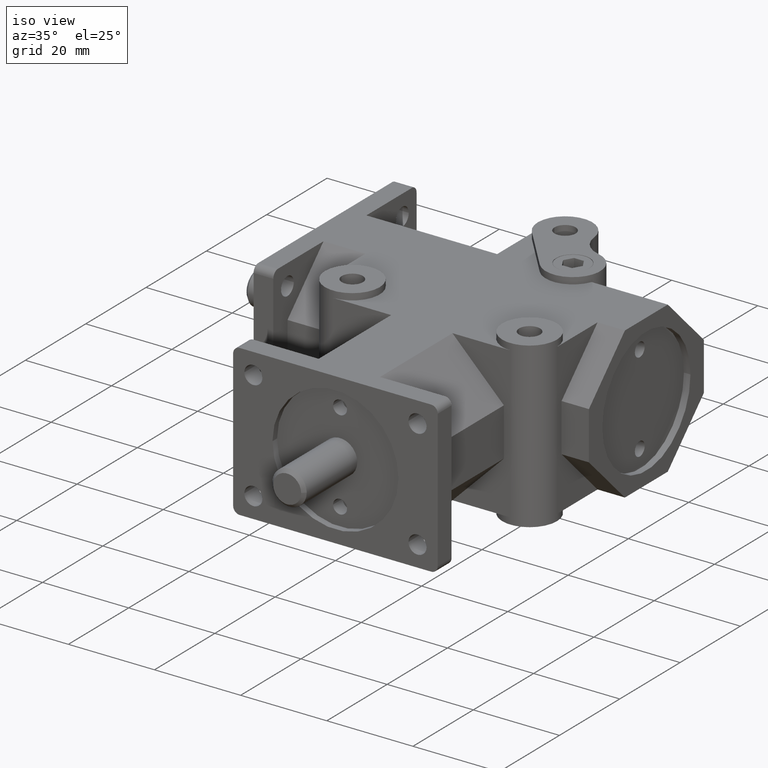
[diagram: clean part render]
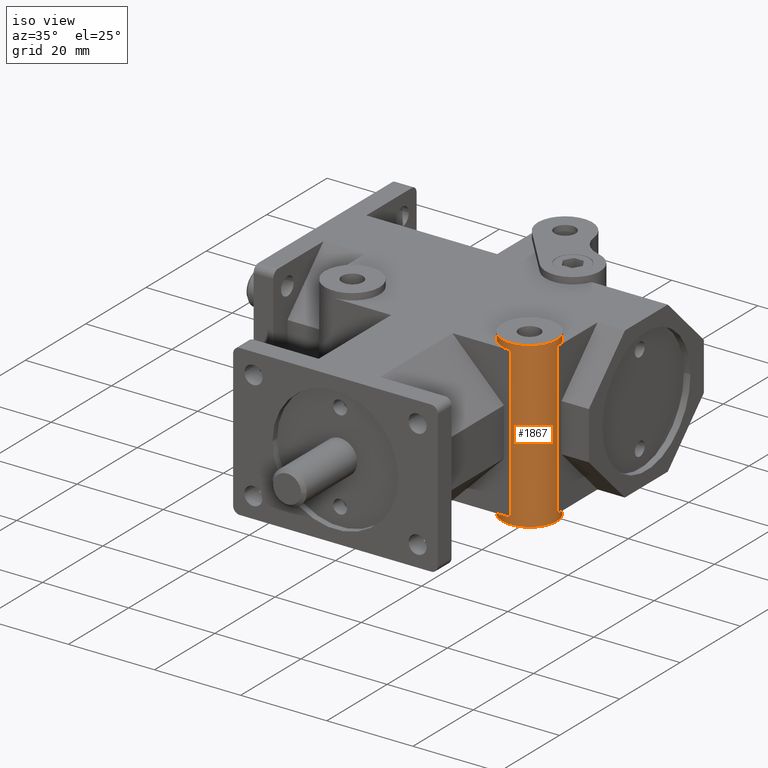
[diagram: same view with one face highlighted and labeled with its STEP entity id]
A machine part, iso view. The second image highlights one B-rep face of the part: STEP entity #1867.
In plain terms, the highlighted cylindrical surface (bore or boss wall) has radius 6.35 mm, axis along (0, 0, 1).
Its self-contained STEP definition (entity closure, byte-faithful):
#195=FACE_OUTER_BOUND('',#326,.T.);
#326=EDGE_LOOP('',(#1616,#1617,#1618,#1619,#1620,#1621,#1622,#1623,#1624,
#1625,#1626,#1627));
#413=CIRCLE('',#1995,6.35);
#414=CIRCLE('',#1996,6.35);
#419=CIRCLE('',#2003,6.35);
#420=CIRCLE('',#2004,6.35);
#439=CIRCLE('',#2063,6.35);
#440=CIRCLE('',#2064,6.35);
#601=LINE('',#3131,#774);
#602=LINE('',#3135,#775);
#603=LINE('',#3137,#776);
#604=LINE('',#3139,#777);
#774=VECTOR('',#2562,1.);
#775=VECTOR('',#2567,6.35);
#776=VECTOR('',#2568,6.35);
#777=VECTOR('',#2571,1.);
#877=VERTEX_POINT('',#2884);
#878=VERTEX_POINT('',#2886);
#879=VERTEX_POINT('',#2888);
#888=VERTEX_POINT('',#2912);
#889=VERTEX_POINT('',#2914);
#890=VERTEX_POINT('',#2916);
#957=VERTEX_POINT('',#3133);
#958=VERTEX_POINT('',#3136);
#1072=EDGE_CURVE('',#877,#878,#413,.T.);
#1073=EDGE_CURVE('',#878,#879,#414,.T.);
#1087=EDGE_CURVE('',#888,#889,#419,.T.);
#1088=EDGE_CURVE('',#889,#890,#420,.T.);
#1197=EDGE_CURVE('',#879,#888,#601,.T.);
#1198=EDGE_CURVE('',#957,#957,#439,.T.);
#1199=EDGE_CURVE('',#957,#889,#602,.T.);
#1200=EDGE_CURVE('',#878,#958,#603,.T.);
#1201=EDGE_CURVE('',#958,#958,#440,.T.);
#1202=EDGE_CURVE('',#877,#890,#604,.T.);
#1616=ORIENTED_EDGE('',*,*,#1198,.T.);
#1617=ORIENTED_EDGE('',*,*,#1199,.T.);
#1618=ORIENTED_EDGE('',*,*,#1087,.F.);
#1619=ORIENTED_EDGE('',*,*,#1197,.F.);
#1620=ORIENTED_EDGE('',*,*,#1073,.F.);
#1621=ORIENTED_EDGE('',*,*,#1200,.T.);
#1622=ORIENTED_EDGE('',*,*,#1201,.T.);
#1623=ORIENTED_EDGE('',*,*,#1200,.F.);
#1624=ORIENTED_EDGE('',*,*,#1072,.F.);
#1625=ORIENTED_EDGE('',*,*,#1202,.T.);
#1626=ORIENTED_EDGE('',*,*,#1088,.F.);
#1627=ORIENTED_EDGE('',*,*,#1199,.F.);
#1781=CYLINDRICAL_SURFACE('',#2062,6.35);
#1867=ADVANCED_FACE('',(#195),#1781,.T.);
#1995=AXIS2_PLACEMENT_3D('',#2887,#2329,#2330);
#1996=AXIS2_PLACEMENT_3D('',#2889,#2331,#2332);
#2003=AXIS2_PLACEMENT_3D('',#2915,#2354,#2355);
#2004=AXIS2_PLACEMENT_3D('',#2917,#2356,#2357);
#2062=AXIS2_PLACEMENT_3D('',#3132,#2563,#2564);
#2063=AXIS2_PLACEMENT_3D('',#3134,#2565,#2566);
#2064=AXIS2_PLACEMENT_3D('',#3138,#2569,#2570);
#2329=DIRECTION('center_axis',(0.,0.,1.));
#2330=DIRECTION('ref_axis',(1.,0.,0.));
#2331=DIRECTION('center_axis',(0.,0.,1.));
#2332=DIRECTION('ref_axis',(1.,0.,0.));
#2354=DIRECTION('center_axis',(0.,0.,-1.));
#2355=DIRECTION('ref_axis',(1.,0.,0.));
#2356=DIRECTION('center_axis',(0.,0.,-1.));
#2357=DIRECTION('ref_axis',(1.,0.,0.));
#2562=DIRECTION('',(0.,0.,1.));
#2563=DIRECTION('center_axis',(0.,0.,1.));
#2564=DIRECTION('ref_axis',(1.,0.,0.));
#2565=DIRECTION('center_axis',(0.,0.,-1.));
#2566=DIRECTION('ref_axis',(1.,0.,0.));
#2567=DIRECTION('',(0.,0.,-1.));
#2568=DIRECTION('',(0.,0.,-1.));
#2569=DIRECTION('center_axis',(0.,0.,1.));
#2570=DIRECTION('ref_axis',(1.,0.,0.));
#2571=DIRECTION('',(0.,0.,1.));
#2884=CARTESIAN_POINT('',(26.924,34.9885,-17.526));
#2886=CARTESIAN_POINT('',(14.224,34.9885,-17.526));
#2887=CARTESIAN_POINT('Origin',(20.574,34.9885,-17.526));
#2888=CARTESIAN_POINT('',(20.574,28.6385,-17.526));
#2889=CARTESIAN_POINT('Origin',(20.574,34.9885,-17.526));
#2912=CARTESIAN_POINT('',(20.574,28.6385,17.526));
#2914=CARTESIAN_POINT('',(14.224,34.9885,17.526));
#2915=CARTESIAN_POINT('Origin',(20.574,34.9885,17.526));
#2916=CARTESIAN_POINT('',(26.924,34.9885,17.526));
#2917=CARTESIAN_POINT('Origin',(20.574,34.9885,17.526));
#3131=CARTESIAN_POINT('',(20.574,28.6385,0.));
#3132=CARTESIAN_POINT('Origin',(20.574,34.9885,0.));
#3133=CARTESIAN_POINT('',(14.224,34.9885,19.05));
#3134=CARTESIAN_POINT('Origin',(20.574,34.9885,19.05));
#3135=CARTESIAN_POINT('',(14.224,34.9885,0.));
#3136=CARTESIAN_POINT('',(14.224,34.9885,-19.05));
#3137=CARTESIAN_POINT('',(14.224,34.9885,0.));
#3138=CARTESIAN_POINT('Origin',(20.574,34.9885,-19.05));
#3139=CARTESIAN_POINT('',(26.924,34.9885,0.));